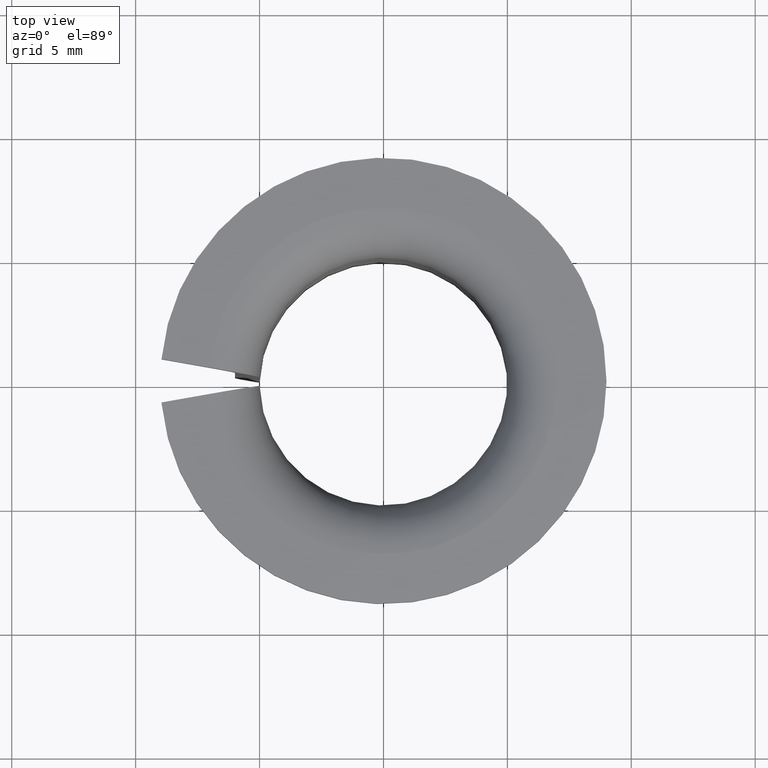
[diagram: clean part render]
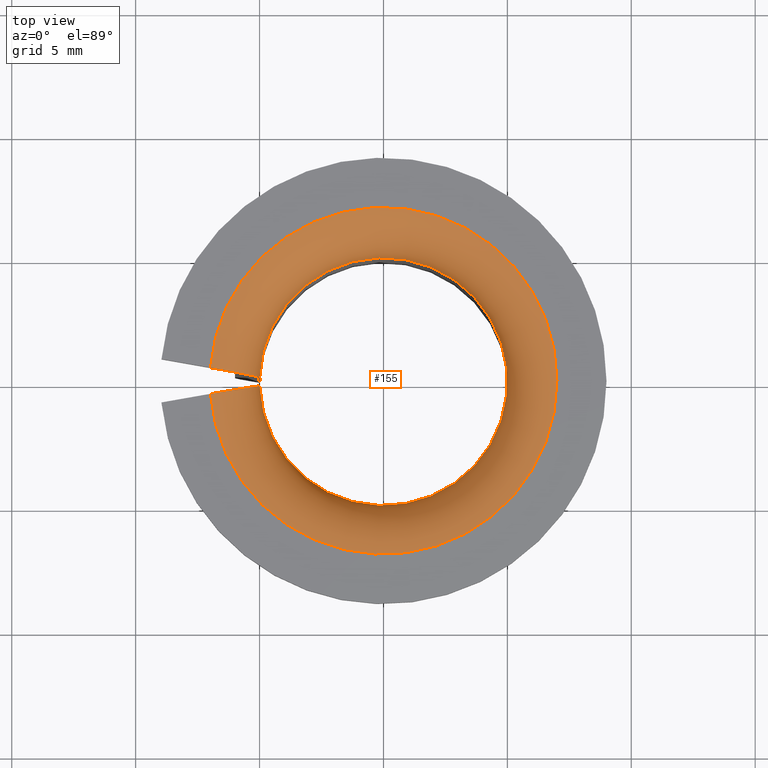
[diagram: same view with one face highlighted and labeled with its STEP entity id]
A machine part, top view. The second image highlights one B-rep face of the part: STEP entity #155.
In plain terms, the highlighted toroidal blend (fillet) surface has major radius 7 mm and minor (blend) radius 2 mm.
Its self-contained STEP definition (entity closure, byte-faithful):
#155=ADVANCED_FACE('',(#171),#172,.T.);
#171=FACE_OUTER_BOUND('',#196,.T.);
#172=TOROIDAL_SURFACE('',#197,0.007,0.002);
#196=EDGE_LOOP('',(#236,#237,#238,#239));
#197=AXIS2_PLACEMENT_3D('',#240,#241,#242);
#236=ORIENTED_EDGE('',*,*,#325,.T.);
#237=ORIENTED_EDGE('',*,*,#326,.T.);
#238=ORIENTED_EDGE('',*,*,#327,.F.);
#239=ORIENTED_EDGE('',*,*,#312,.F.);
#240=CARTESIAN_POINT('',(0.0,0.0,0.013));
#241=DIRECTION('',(0.0,-6.12323399573677E-017,-1.0));
#242=DIRECTION('',(0.0,1.0,-6.12323399573677E-017));
#312=EDGE_CURVE('',#342,#343,#344,.T.);
#325=EDGE_CURVE('',#342,#367,#368,.T.);
#326=EDGE_CURVE('',#367,#369,#370,.T.);
#327=EDGE_CURVE('',#343,#369,#371,.T.);
#342=VERTEX_POINT('',#392);
#343=VERTEX_POINT('',#393);
#344=B_SPLINE_CURVE_WITH_KNOTS('',3,(#394,#395,#396,#397,#398,#399,#400,#401,#402,#403,#404,#405,#406,#407),.UNSPECIFIED.,.F.,.F.,(4,2,2,2,2,2,4),(1.97148637082927E-007,0.000392055035355555,0.000783912922074027,0.0011757708087925,0.00156762869551097,0.00235134446894792,0.00313506024238487),.UNSPECIFIED.);
#367=VERTEX_POINT('',#454);
#368=CIRCLE('',#455,0.005);
#369=VERTEX_POINT('',#456);
#370=B_SPLINE_CURVE_WITH_KNOTS('',3,(#457,#458,#459,#460,#461,#462,#463,#464,#465,#466,#467,#468,#469,#470),.UNSPECIFIED.,.F.,.F.,(4,2,2,2,2,2,4),(1.97148637082927E-007,0.000392055035355556,0.000783912922074029,0.0011757708087925,0.00156762869551097,0.00235134446894792,0.00313506024238487),.UNSPECIFIED.);
#371=CIRCLE('',#471,0.007);
#392=CARTESIAN_POINT('',(0.00499690911439787,-0.000175781974182525,0.013));
#393=CARTESIAN_POINT('',(0.00698024726283339,-0.000525498001620076,0.015));
#394=CARTESIAN_POINT('',(0.00499690911439787,-0.000175781974182525,0.013));
#395=CARTESIAN_POINT('',(0.00499690911439787,-0.000175781974182525,0.0131325073022672));
#396=CARTESIAN_POINT('',(0.00500987598777973,-0.000178068383815177,0.0132627678241997));
#397=CARTESIAN_POINT('',(0.00506064444528327,-0.000187020232642003,0.0135189857382304));
#398=CARTESIAN_POINT('',(0.00509908036619081,-0.000193797522526379,0.0136462915934546));
#399=CARTESIAN_POINT('',(0.0051991852674803,-0.000211448717524873,0.0138886700301087));
#400=CARTESIAN_POINT('',(0.00526039991893803,-0.000222242512191536,0.0140035803095491));
#401=CARTESIAN_POINT('',(0.00540490011618038,-0.000247721795683058,0.0142209855930756));
#402=CARTESIAN_POINT('',(0.0054888201766522,-0.000262519166566925,0.0143237067417591));
#403=CARTESIAN_POINT('',(0.00576344234528216,-0.000310942464397057,0.0145998053688362));
#404=CARTESIAN_POINT('',(0.00598440069470476,-0.000349903383013071,0.0147483176485645));
#405=CARTESIAN_POINT('',(0.00646021006076225,-0.000433801411922796,0.0149471992978129));
#406=CARTESIAN_POINT('',(0.00671960322435305,-0.00047953942527518,0.015));
#407=CARTESIAN_POINT('',(0.00698024726283339,-0.000525498001620078,0.015));
#454=CARTESIAN_POINT('',(0.00499690911439787,0.000175781974182527,0.013));
#455=AXIS2_PLACEMENT_3D('',#522,#523,#524);
#456=CARTESIAN_POINT('',(0.00698024726283339,0.00052549800162008,0.015));
#457=CARTESIAN_POINT('',(0.00499690911439787,0.000175781974182528,0.013));
#458=CARTESIAN_POINT('',(0.00499690911439787,0.000175781974182528,0.0131325073022672));
#459=CARTESIAN_POINT('',(0.00500987598777973,0.00017806838381518,0.0132627678241997));
#460=CARTESIAN_POINT('',(0.00506064444528327,0.000187020232642006,0.0135189857382304));
#461=CARTESIAN_POINT('',(0.00509908036619081,0.000193797522526382,0.0136462915934546));
#462=CARTESIAN_POINT('',(0.0051991852674803,0.000211448717524876,0.0138886700301087));
#463=CARTESIAN_POINT('',(0.00526039991893803,0.00022224251219154,0.0140035803095491));
#464=CARTESIAN_POINT('',(0.00540490011618038,0.000247721795683061,0.0142209855930756));
#465=CARTESIAN_POINT('',(0.0054888201766522,0.000262519166566927,0.0143237067417591));
#466=CARTESIAN_POINT('',(0.00576344234528216,0.00031094246439706,0.0145998053688362));
#467=CARTESIAN_POINT('',(0.00598440069470476,0.000349903383013074,0.0147483176485645));
#468=CARTESIAN_POINT('',(0.00646021006076225,0.000433801411922799,0.0149471992978129));
#469=CARTESIAN_POINT('',(0.00671960322435306,0.000479539425275183,0.015));
#470=CARTESIAN_POINT('',(0.00698024726283339,0.000525498001620081,0.015));
#471=AXIS2_PLACEMENT_3D('',#525,#526,#527);
#522=CARTESIAN_POINT('',(0.0,0.0,0.013));
#523=DIRECTION('',(0.0,-6.12323399573677E-017,-1.0));
#524=DIRECTION('',(0.0,1.0,-6.12323399573677E-017));
#525=CARTESIAN_POINT('',(0.0,0.0,0.015));
#526=DIRECTION('',(0.0,-6.12323399573677E-017,-1.0));
#527=DIRECTION('',(0.0,1.0,-6.12323399573677E-017));